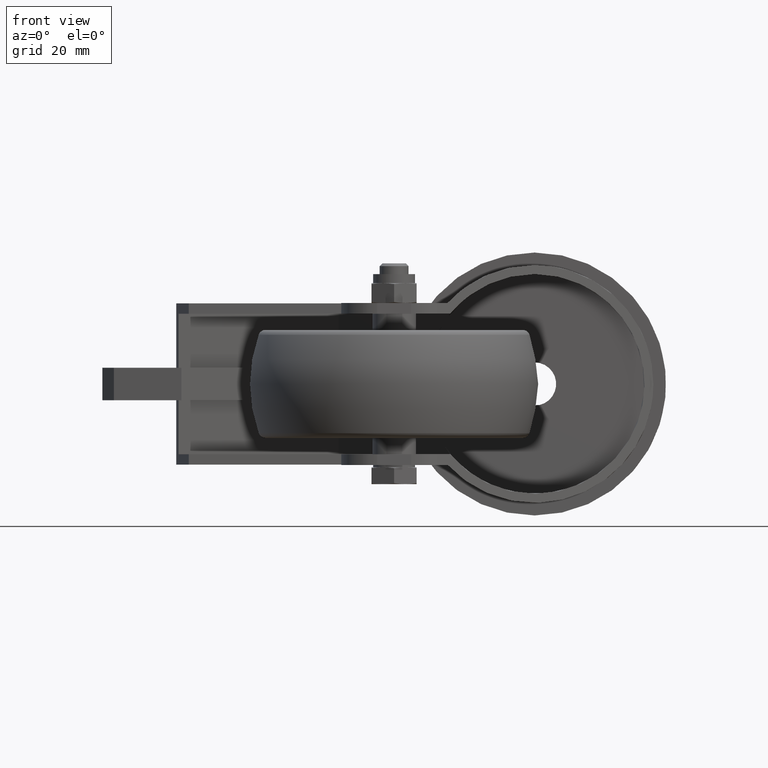
[diagram: clean part render]
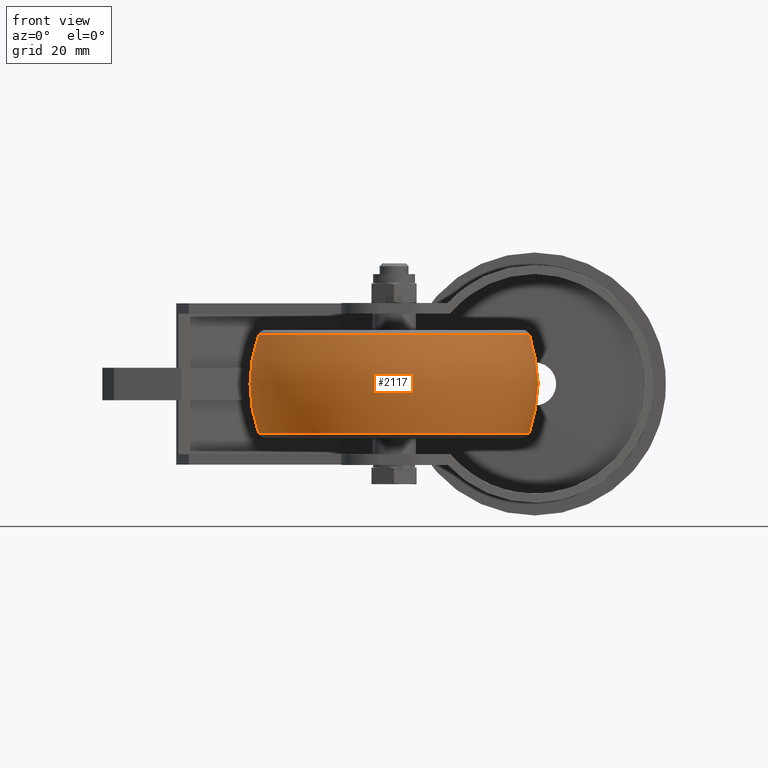
[diagram: same view with one face highlighted and labeled with its STEP entity id]
A machine part, front view. The second image highlights one B-rep face of the part: STEP entity #2117.
In plain terms, the highlighted spherical surface has radius 40 mm.
Its self-contained STEP definition (entity closure, byte-faithful):
#23=SPHERICAL_SURFACE('',#2467,40.0000000000001);
#361=FACE_OUTER_BOUND('',#510,.T.);
#510=EDGE_LOOP('',(#1962,#1963,#1964,#1965));
#614=CIRCLE('',#2466,37.5864654133834);
#615=CIRCLE('',#2468,40.0000000000001);
#616=CIRCLE('',#2469,37.5864654133834);
#1080=VERTEX_POINT('',#3807);
#1081=VERTEX_POINT('',#3811);
#1374=EDGE_CURVE('',#1080,#1080,#614,.T.);
#1375=EDGE_CURVE('',#1080,#1081,#615,.T.);
#1376=EDGE_CURVE('',#1081,#1081,#616,.T.);
#1962=ORIENTED_EDGE('',*,*,#1374,.F.);
#1963=ORIENTED_EDGE('',*,*,#1375,.T.);
#1964=ORIENTED_EDGE('',*,*,#1376,.T.);
#1965=ORIENTED_EDGE('',*,*,#1375,.F.);
#2117=ADVANCED_FACE('',(#361),#23,.T.);
#2466=AXIS2_PLACEMENT_3D('',#3809,#3088,#3089);
#2467=AXIS2_PLACEMENT_3D('',#3810,#3090,#3091);
#2468=AXIS2_PLACEMENT_3D('',#3812,#3092,#3093);
#2469=AXIS2_PLACEMENT_3D('',#3813,#3094,#3095);
#3088=DIRECTION('center_axis',(0.,0.,1.));
#3089=DIRECTION('ref_axis',(1.,0.,0.));
#3090=DIRECTION('center_axis',(6.12323399573677E-17,0.,1.));
#3091=DIRECTION('ref_axis',(1.,0.,0.));
#3092=DIRECTION('center_axis',(1.22464679914735E-16,-1.,0.));
#3093=DIRECTION('ref_axis',(-1.,-1.22464679914735E-16,0.));
#3094=DIRECTION('center_axis',(0.,0.,1.));
#3095=DIRECTION('ref_axis',(1.,0.,0.));
#3807=CARTESIAN_POINT('',(-37.5864654133834,-4.60301445597627E-15,13.6842105263158));
#3809=CARTESIAN_POINT('Origin',(0.,0.,13.6842105263158));
#3810=CARTESIAN_POINT('Origin',(-1.04083408558608E-13,0.,-9.54097911787244E-15));
#3811=CARTESIAN_POINT('',(-37.5864654133834,-4.60301445597625E-15,-13.6842105263158));
#3812=CARTESIAN_POINT('Origin',(-1.04083408558608E-13,0.,-9.54097911787244E-15));
#3813=CARTESIAN_POINT('Origin',(0.,0.,-13.6842105263158));